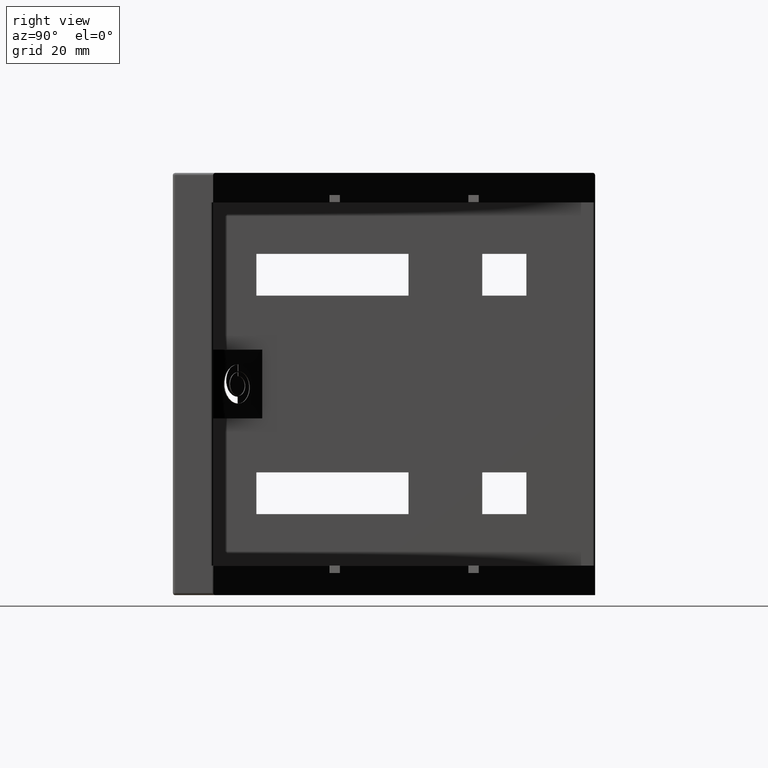
[diagram: clean part render]
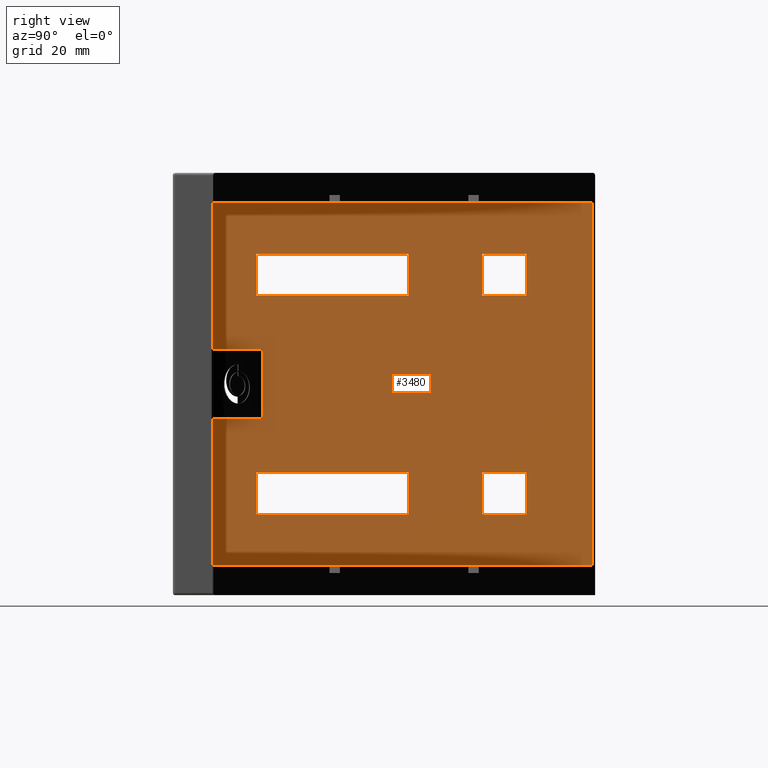
[diagram: same view with one face highlighted and labeled with its STEP entity id]
A machine part, right view. The second image highlights one B-rep face of the part: STEP entity #3480.
In plain terms, the highlighted planar face has unit normal (1, 0, 0).
Its self-contained STEP definition (entity closure, byte-faithful):
#99=FACE_BOUND('',#555,.T.);
#100=FACE_BOUND('',#556,.T.);
#101=FACE_BOUND('',#557,.T.);
#102=FACE_BOUND('',#558,.T.);
#344=FACE_OUTER_BOUND('',#554,.T.);
#554=EDGE_LOOP('',(#2683,#2684,#2685,#2686,#2687,#2688,#2689,#2690));
#555=EDGE_LOOP('',(#2691,#2692,#2693,#2694));
#556=EDGE_LOOP('',(#2695,#2696,#2697,#2698));
#557=EDGE_LOOP('',(#2699,#2700,#2701,#2702));
#558=EDGE_LOOP('',(#2703,#2704,#2705,#2706));
#708=LINE('',#5091,#1073);
#734=LINE('',#5158,#1099);
#758=LINE('',#5236,#1123);
#893=LINE('',#5584,#1258);
#894=LINE('',#5587,#1259);
#895=LINE('',#5588,#1260);
#896=LINE('',#5590,#1261);
#897=LINE('',#5591,#1262);
#898=LINE('',#5594,#1263);
#899=LINE('',#5596,#1264);
#900=LINE('',#5598,#1265);
#901=LINE('',#5599,#1266);
#902=LINE('',#5602,#1267);
#903=LINE('',#5604,#1268);
#904=LINE('',#5606,#1269);
#905=LINE('',#5607,#1270);
#906=LINE('',#5610,#1271);
#907=LINE('',#5612,#1272);
#908=LINE('',#5614,#1273);
#909=LINE('',#5615,#1274);
#910=LINE('',#5618,#1275);
#911=LINE('',#5620,#1276);
#912=LINE('',#5622,#1277);
#913=LINE('',#5623,#1278);
#1073=VECTOR('',#4025,10.);
#1099=VECTOR('',#4083,10.);
#1123=VECTOR('',#4175,10.);
#1258=VECTOR('',#4456,10.);
#1259=VECTOR('',#4459,10.);
#1260=VECTOR('',#4460,10.);
#1261=VECTOR('',#4461,10.);
#1262=VECTOR('',#4462,10.);
#1263=VECTOR('',#4463,10.);
#1264=VECTOR('',#4464,10.);
#1265=VECTOR('',#4465,10.);
#1266=VECTOR('',#4466,10.);
#1267=VECTOR('',#4467,10.);
#1268=VECTOR('',#4468,10.);
#1269=VECTOR('',#4469,10.);
#1270=VECTOR('',#4470,10.);
#1271=VECTOR('',#4471,10.);
#1272=VECTOR('',#4472,10.);
#1273=VECTOR('',#4473,10.);
#1274=VECTOR('',#4474,10.);
#1275=VECTOR('',#4475,10.);
#1276=VECTOR('',#4476,10.);
#1277=VECTOR('',#4477,10.);
#1278=VECTOR('',#4478,10.);
#1437=VERTEX_POINT('',#5088);
#1438=VERTEX_POINT('',#5090);
#1462=VERTEX_POINT('',#5155);
#1463=VERTEX_POINT('',#5157);
#1482=VERTEX_POINT('',#5234);
#1483=VERTEX_POINT('',#5235);
#1624=VERTEX_POINT('',#5586);
#1625=VERTEX_POINT('',#5589);
#1626=VERTEX_POINT('',#5592);
#1627=VERTEX_POINT('',#5593);
#1628=VERTEX_POINT('',#5595);
#1629=VERTEX_POINT('',#5597);
#1630=VERTEX_POINT('',#5600);
#1631=VERTEX_POINT('',#5601);
#1632=VERTEX_POINT('',#5603);
#1633=VERTEX_POINT('',#5605);
#1634=VERTEX_POINT('',#5608);
#1635=VERTEX_POINT('',#5609);
#1636=VERTEX_POINT('',#5611);
#1637=VERTEX_POINT('',#5613);
#1638=VERTEX_POINT('',#5616);
#1639=VERTEX_POINT('',#5617);
#1640=VERTEX_POINT('',#5619);
#1641=VERTEX_POINT('',#5621);
#1774=EDGE_CURVE('',#1437,#1438,#708,.T.);
#1807=EDGE_CURVE('',#1462,#1463,#734,.T.);
#1848=EDGE_CURVE('',#1482,#1483,#758,.T.);
#2023=EDGE_CURVE('',#1463,#1437,#893,.T.);
#2024=EDGE_CURVE('',#1624,#1462,#894,.T.);
#2025=EDGE_CURVE('',#1624,#1482,#895,.T.);
#2026=EDGE_CURVE('',#1483,#1625,#896,.T.);
#2027=EDGE_CURVE('',#1438,#1625,#897,.T.);
#2028=EDGE_CURVE('',#1626,#1627,#898,.T.);
#2029=EDGE_CURVE('',#1627,#1628,#899,.T.);
#2030=EDGE_CURVE('',#1628,#1629,#900,.T.);
#2031=EDGE_CURVE('',#1626,#1629,#901,.T.);
#2032=EDGE_CURVE('',#1630,#1631,#902,.T.);
#2033=EDGE_CURVE('',#1631,#1632,#903,.T.);
#2034=EDGE_CURVE('',#1632,#1633,#904,.T.);
#2035=EDGE_CURVE('',#1633,#1630,#905,.T.);
#2036=EDGE_CURVE('',#1634,#1635,#906,.T.);
#2037=EDGE_CURVE('',#1634,#1636,#907,.T.);
#2038=EDGE_CURVE('',#1636,#1637,#908,.T.);
#2039=EDGE_CURVE('',#1637,#1635,#909,.T.);
#2040=EDGE_CURVE('',#1638,#1639,#910,.T.);
#2041=EDGE_CURVE('',#1639,#1640,#911,.T.);
#2042=EDGE_CURVE('',#1640,#1641,#912,.T.);
#2043=EDGE_CURVE('',#1641,#1638,#913,.T.);
#2683=ORIENTED_EDGE('',*,*,#2023,.F.);
#2684=ORIENTED_EDGE('',*,*,#1807,.F.);
#2685=ORIENTED_EDGE('',*,*,#2024,.F.);
#2686=ORIENTED_EDGE('',*,*,#2025,.T.);
#2687=ORIENTED_EDGE('',*,*,#1848,.T.);
#2688=ORIENTED_EDGE('',*,*,#2026,.T.);
#2689=ORIENTED_EDGE('',*,*,#2027,.F.);
#2690=ORIENTED_EDGE('',*,*,#1774,.F.);
#2691=ORIENTED_EDGE('',*,*,#2028,.T.);
#2692=ORIENTED_EDGE('',*,*,#2029,.T.);
#2693=ORIENTED_EDGE('',*,*,#2030,.T.);
#2694=ORIENTED_EDGE('',*,*,#2031,.F.);
#2695=ORIENTED_EDGE('',*,*,#2032,.T.);
#2696=ORIENTED_EDGE('',*,*,#2033,.T.);
#2697=ORIENTED_EDGE('',*,*,#2034,.T.);
#2698=ORIENTED_EDGE('',*,*,#2035,.T.);
#2699=ORIENTED_EDGE('',*,*,#2036,.F.);
#2700=ORIENTED_EDGE('',*,*,#2037,.T.);
#2701=ORIENTED_EDGE('',*,*,#2038,.T.);
#2702=ORIENTED_EDGE('',*,*,#2039,.T.);
#2703=ORIENTED_EDGE('',*,*,#2040,.T.);
#2704=ORIENTED_EDGE('',*,*,#2041,.T.);
#2705=ORIENTED_EDGE('',*,*,#2042,.T.);
#2706=ORIENTED_EDGE('',*,*,#2043,.T.);
#3340=PLANE('',#3764);
#3480=ADVANCED_FACE('',(#344,#99,#100,#101,#102),#3340,.T.);
#3764=AXIS2_PLACEMENT_3D('',#5585,#4457,#4458);
#4025=DIRECTION('',(0.,-1.,-1.14161750604129E-16));
#4083=DIRECTION('',(0.,1.,1.28431969429645E-16));
#4175=DIRECTION('',(0.,0.,-1.));
#4456=DIRECTION('',(0.,0.,-1.));
#4457=DIRECTION('center_axis',(1.,0.,0.));
#4458=DIRECTION('ref_axis',(0.,0.,-1.));
#4459=DIRECTION('',(0.,0.,1.));
#4460=DIRECTION('',(0.,1.,0.));
#4461=DIRECTION('',(0.,-1.,0.));
#4462=DIRECTION('',(0.,0.,1.));
#4463=DIRECTION('',(0.,0.,-1.));
#4464=DIRECTION('',(0.,-1.,0.));
#4465=DIRECTION('',(0.,0.,1.));
#4466=DIRECTION('',(0.,-1.,0.));
#4467=DIRECTION('',(0.,0.,1.));
#4468=DIRECTION('',(0.,1.,0.));
#4469=DIRECTION('',(0.,0.,-1.));
#4470=DIRECTION('',(0.,-1.,0.));
#4471=DIRECTION('',(0.,-1.,0.));
#4472=DIRECTION('',(0.,0.,-1.));
#4473=DIRECTION('',(0.,-1.,0.));
#4474=DIRECTION('',(0.,0.,1.));
#4475=DIRECTION('',(0.,-1.,0.));
#4476=DIRECTION('',(0.,0.,1.));
#4477=DIRECTION('',(0.,1.,0.));
#4478=DIRECTION('',(0.,0.,-1.));
#5088=CARTESIAN_POINT('',(8.2,85.5,-37.));
#5090=CARTESIAN_POINT('',(8.2,8.2,-37.));
#5091=CARTESIAN_POINT('',(8.2,66.55,-37.));
#5155=CARTESIAN_POINT('',(8.2,8.2,37.));
#5157=CARTESIAN_POINT('',(8.2,85.5,37.));
#5158=CARTESIAN_POINT('',(8.2,27.65,37.));
#5234=CARTESIAN_POINT('',(8.2,18.2,7.));
#5235=CARTESIAN_POINT('',(8.2,18.2,-7.));
#5236=CARTESIAN_POINT('',(8.2,18.2,0.));
#5584=CARTESIAN_POINT('',(8.2,85.5,0.));
#5585=CARTESIAN_POINT('Origin',(8.2,47.1,0.));
#5586=CARTESIAN_POINT('',(8.2,8.2,7.));
#5587=CARTESIAN_POINT('',(8.2,8.2,-18.5));
#5588=CARTESIAN_POINT('',(8.2,29.4177669529664,7.));
#5589=CARTESIAN_POINT('',(8.2,8.2,-7.));
#5590=CARTESIAN_POINT('',(8.2,29.4177669529664,-7.));
#5591=CARTESIAN_POINT('',(8.2,8.2,-18.5));
#5592=CARTESIAN_POINT('',(8.2,72.,-18.));
#5593=CARTESIAN_POINT('',(8.2,72.,-26.5));
#5594=CARTESIAN_POINT('',(8.2,72.,0.));
#5595=CARTESIAN_POINT('',(8.2,63.,-26.5));
#5596=CARTESIAN_POINT('',(8.2,55.8504310985676,-26.5));
#5597=CARTESIAN_POINT('',(8.2,63.,-18.));
#5598=CARTESIAN_POINT('',(8.2,63.,0.));
#5599=CARTESIAN_POINT('',(8.2,86.,-18.));
#5600=CARTESIAN_POINT('',(8.2,17.,18.));
#5601=CARTESIAN_POINT('',(8.2,17.,26.5));
#5602=CARTESIAN_POINT('',(8.2,17.,0.));
#5603=CARTESIAN_POINT('',(8.2,48.,26.5));
#5604=CARTESIAN_POINT('',(8.2,38.3504310985676,26.5));
#5605=CARTESIAN_POINT('',(8.2,48.,18.));
#5606=CARTESIAN_POINT('',(8.2,48.,0.));
#5607=CARTESIAN_POINT('',(8.2,86.,18.));
#5608=CARTESIAN_POINT('',(8.2,48.,-18.));
#5609=CARTESIAN_POINT('',(8.2,17.,-18.));
#5610=CARTESIAN_POINT('',(8.2,86.,-18.));
#5611=CARTESIAN_POINT('',(8.2,48.,-26.5));
#5612=CARTESIAN_POINT('',(8.2,48.,0.));
#5613=CARTESIAN_POINT('',(8.2,17.,-26.5));
#5614=CARTESIAN_POINT('',(8.2,38.3504310985676,-26.5));
#5615=CARTESIAN_POINT('',(8.2,17.,0.));
#5616=CARTESIAN_POINT('',(8.2,72.,18.));
#5617=CARTESIAN_POINT('',(8.2,63.,18.));
#5618=CARTESIAN_POINT('',(8.2,86.,18.));
#5619=CARTESIAN_POINT('',(8.2,63.,26.5));
#5620=CARTESIAN_POINT('',(8.2,63.,0.));
#5621=CARTESIAN_POINT('',(8.2,72.,26.5));
#5622=CARTESIAN_POINT('',(8.2,55.8504310985676,26.5));
#5623=CARTESIAN_POINT('',(8.2,72.,0.));